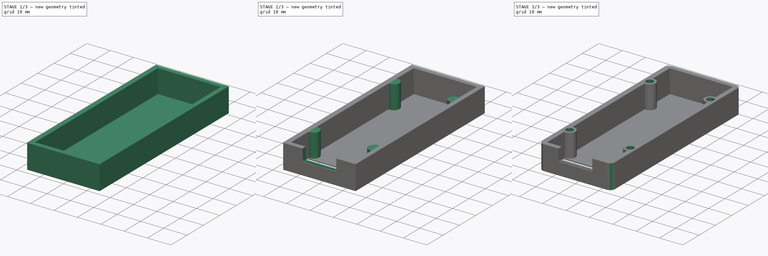
[diagram: build sequence overview — one tinted view per stage of 3, left to right]
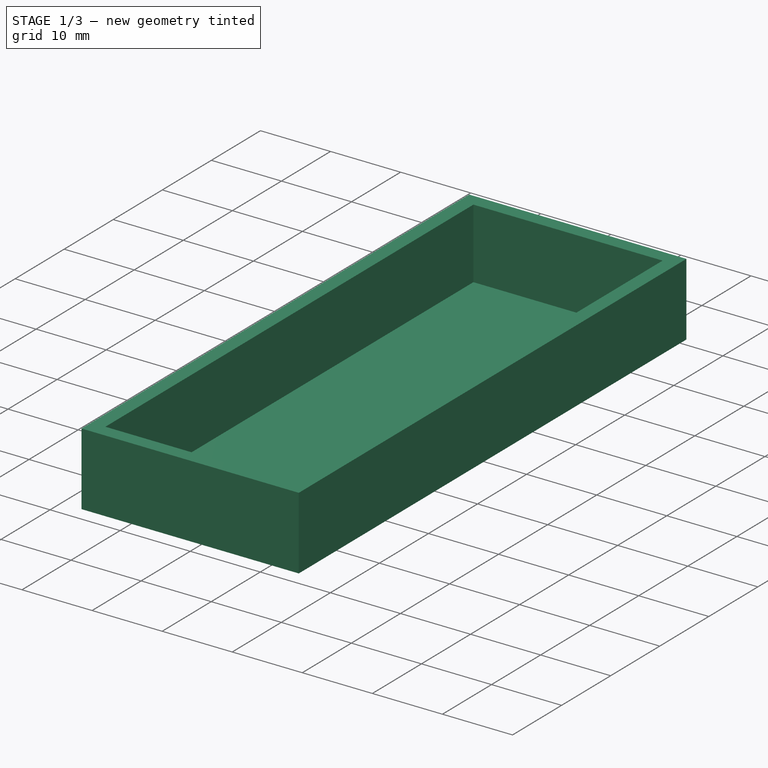
[diagram: stage 1 of 3 — iso view after this stage's code; geometry added in this stage tinted green]
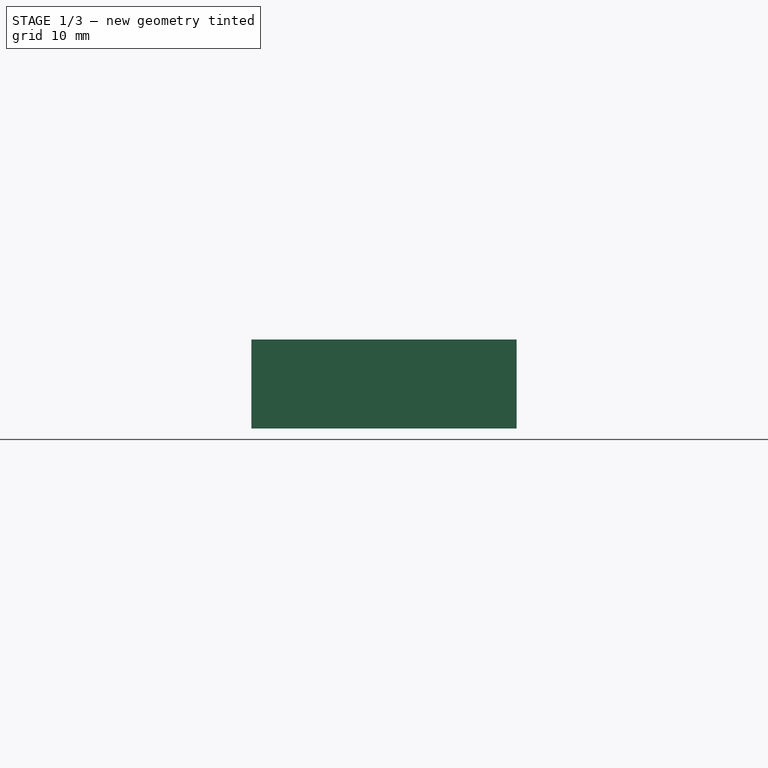
[diagram: stage 1 of 3 — front view after this stage's code; geometry added in this stage tinted green]
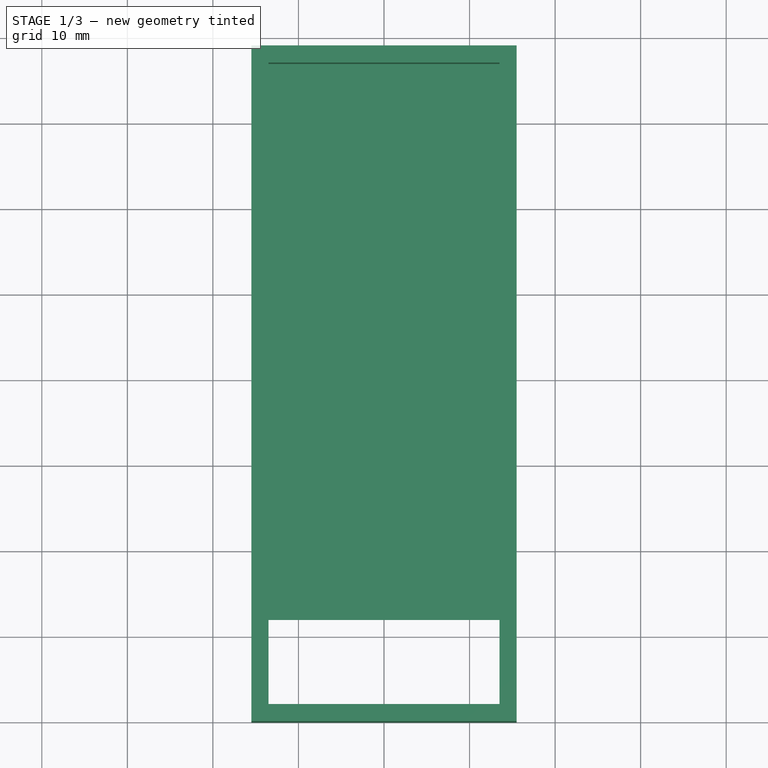
[diagram: stage 1 of 3 — top view after this stage's code; geometry added in this stage tinted green]
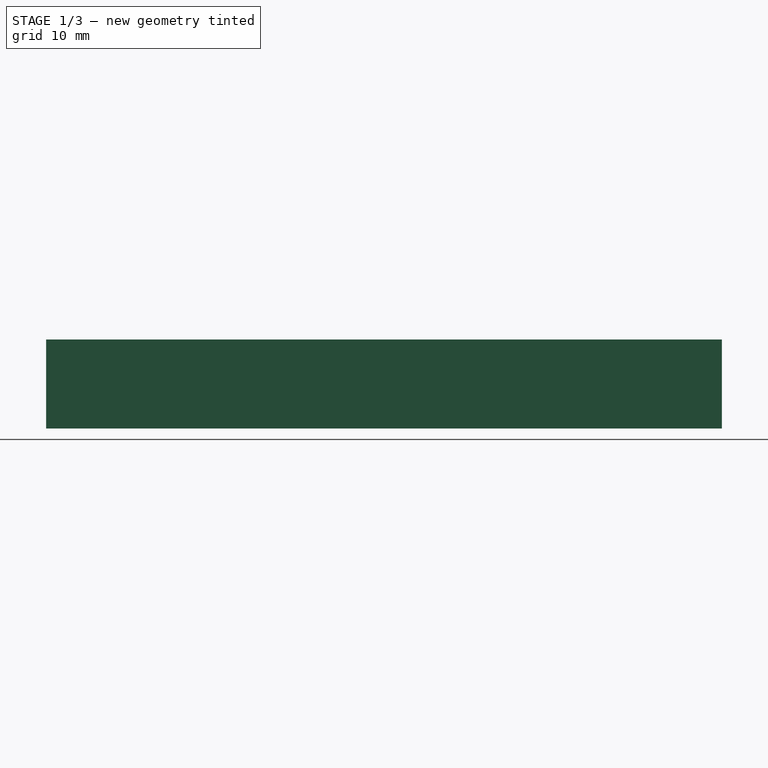
[diagram: stage 1 of 3 — right view after this stage's code; geometry added in this stage tinted green]
FCSTD DOCUMENT  (FreeCAD 0.18R13661 (Git))
Label: Middle_IskraMini
License: All rights reserved
LicenseURL: http://en.wikipedia.org/wiki/All_rights_reserved
objects: Sketcher::SketchObject×6, PartDesign::Pad×4, PartDesign::Plane×3, PartDesign::Pocket×2, PartDesign::Fillet×1, PartDesign::Body×1
note: 23 computed .brp shape members not serialized (recipe doc carries the construction recipe); baked Part::Feature solids carry a one-line shape summary decoded from their .brp

FEATURE [Sketcher::SketchObject] Sketch  label="BaseSketch"
  MapMode = 5
  Support = -> [XY_Plane]
  sketch-geometry (14):
    g0: LineSegment StartX=0 StartY=0 StartZ=0 EndX=15.5 EndY=0 EndZ=0
    g1: LineSegment StartX=0 StartY=0 StartZ=0 EndX=-15.5 EndY=0 EndZ=0
    g2: LineSegment StartX=-15.5 StartY=0 StartZ=0 EndX=-15.5 EndY=39.5 EndZ=0
    g3: LineSegment StartX=-15.5 StartY=39.5 StartZ=0 EndX=-15.5 EndY=79 EndZ=0
    g4: LineSegment StartX=-15.5 StartY=79 StartZ=0 EndX=0 EndY=79 EndZ=0
    g5: LineSegment StartX=0 StartY=79 StartZ=0 EndX=15.5 EndY=79 EndZ=0
    g6: LineSegment StartX=15.5 StartY=79 StartZ=0 EndX=15.5 EndY=39.5 EndZ=0
    g7: LineSegment StartX=15.5 StartY=39.5 StartZ=0 EndX=15.5 EndY=0 EndZ=0
    g8: LineSegment StartX=-13.5 StartY=77 StartZ=0 EndX=13.5 EndY=77 EndZ=0
    g9: LineSegment StartX=13.5 StartY=77 StartZ=0 EndX=13.5 EndY=2 EndZ=0
    g10: LineSegment StartX=13.5 StartY=2 StartZ=0 EndX=-13.5 EndY=2 EndZ=0
    g11: LineSegment StartX=-13.5 StartY=2 StartZ=0 EndX=-13.5 EndY=77 EndZ=0
    g12: LineSegment [constr] StartX=-13.5 StartY=77 StartZ=0 EndX=-15.5 EndY=77 EndZ=0
    g13: LineSegment [constr] StartX=13.5 StartY=77 StartZ=0 EndX=15.5 EndY=77 EndZ=0
  constraints (41):
    c: Coincident(g0,g-1)
    c: Coincident(g1,g-1)
    c: Equal(g1,g0)
    c: Parallel(g0,g1)
    c: Horizontal(g0)
    c: Coincident(g2,g1)
    c: Perpendicular(g1,g2)
    c: Coincident(g3,g2)
    c: Equal(g3,g2)
    c: Parallel(g3,g2)
    c: Coincident(g4,g3)
    c: Coincident(g5,g4)
    c: Coincident(g6,g5)
    c: Coincident(g7,g6)
    c: Coincident(g7,g0)
    c: Equal(g4,g5)
    c: Equal(g7,g6)
    c: Parallel(g4,g5)
    c: Perpendicular(g3,g4)
    c: Parallel(g6,g7)
    c: Perpendicular(g6,g5)
    c: Coincident(g8,g9)
    c: Coincident(g9,g10)
    c: Coincident(g10,g11)
    c: Coincident(g11,g8)
    c: Parallel(g11,g3)
    c: Parallel(g8,g4)
    c: Parallel(g9,g6)
    c: Parallel(g1,g10)
    c: Coincident(g12,g8)
    c: PointOnObject(g12,g3)
    c: Coincident(g13,g8)
    c: PointOnObject(g13,g6)
    c: Distance(g12) = 2
    c: Distance(g3,g12) = 2
    c: Parallel(g12,g8)
    c: Equal(g12,g13)
    c: Parallel(g12,g13)
    c: Distance(g10) = 27
    c: Distance(g11) = 75
    c: Distance(g10,g1) = 2
FEATURE [PartDesign::Pad] Pad  label="BasePad"
  Length = 10
  Length2 = 100
  Profile = -> Sketch
  Type = 0
FEATURE [Sketcher::SketchObject] Sketch001  label="BottomSketch"
  ExternalGeometry = -> [Pad]
  MapMode = 5
  Support = -> [XY_Plane]
  sketch-geometry (12):
    g0: LineSegment StartX=-15.5 StartY=79 StartZ=0 EndX=-15.5 EndY=39.5 EndZ=0
    g1: LineSegment StartX=-15.5 StartY=39.5 StartZ=0 EndX=-15.5 EndY=0 EndZ=0
    g2: LineSegment StartX=-15.5 StartY=0 StartZ=0 EndX=0 EndY=0 EndZ=0
    g3: LineSegment StartX=0 StartY=0 StartZ=0 EndX=15.5 EndY=0 EndZ=0
    g4: LineSegment StartX=15.5 StartY=0 StartZ=0 EndX=15.5 EndY=39.5 EndZ=0
    g5: LineSegment StartX=15.5 StartY=39.5 StartZ=0 EndX=15.5 EndY=79 EndZ=0
    g6: LineSegment StartX=15.5 StartY=79 StartZ=0 EndX=0 EndY=79 EndZ=0
    g7: LineSegment StartX=0 StartY=79 StartZ=0 EndX=-15.5 EndY=79 EndZ=0
    g8: LineSegment StartX=13.5 StartY=2 StartZ=0 EndX=-13.5 EndY=2 EndZ=0
    g9: LineSegment StartX=-13.5 StartY=2 StartZ=0 EndX=-13.5 EndY=12 EndZ=0
    g10: LineSegment StartX=13.5 StartY=2 StartZ=0 EndX=13.5 EndY=12 EndZ=0
    g11: LineSegment StartX=-13.5 StartY=12 StartZ=0 EndX=13.5 EndY=12 EndZ=0
  constraints (26):
    c: Coincident(g0,g-10)
    c: Coincident(g0,g-4)
    c: Coincident(g1,g0)
    c: Coincident(g1,g-5)
    c: Coincident(g2,g1)
    c: Coincident(g2,g-1)
    c: Coincident(g3,g-1)
    c: Coincident(g3,g-7)
    c: Coincident(g4,g3)
    c: Coincident(g4,g-8)
    c: Coincident(g5,g4)
    c: Coincident(g5,g-9)
    c: Coincident(g6,g5)
    c: Coincident(g6,g-10)
    c: Coincident(g7,g6)
    c: Coincident(g7,g0)
    c: Coincident(g8,g-11)
    c: Coincident(g8,g-11)
    c: Coincident(g9,g8)
    c: Coincident(g10,g8)
    c: Coincident(g11,g9)
    c: Coincident(g11,g10)
    c: Perpendicular(g9,g8)
    c: Perpendicular(g9,g11)
    c: Perpendicular(g8,g10)
    c: Distance(g9) = 10
FEATURE [PartDesign::Pad] Pad001  label="BottomPad"
  BaseFeature = -> Pad
  Length = 0.4
  Length2 = 100
  Profile = -> Sketch001
  Reversed = true
  Type = 0
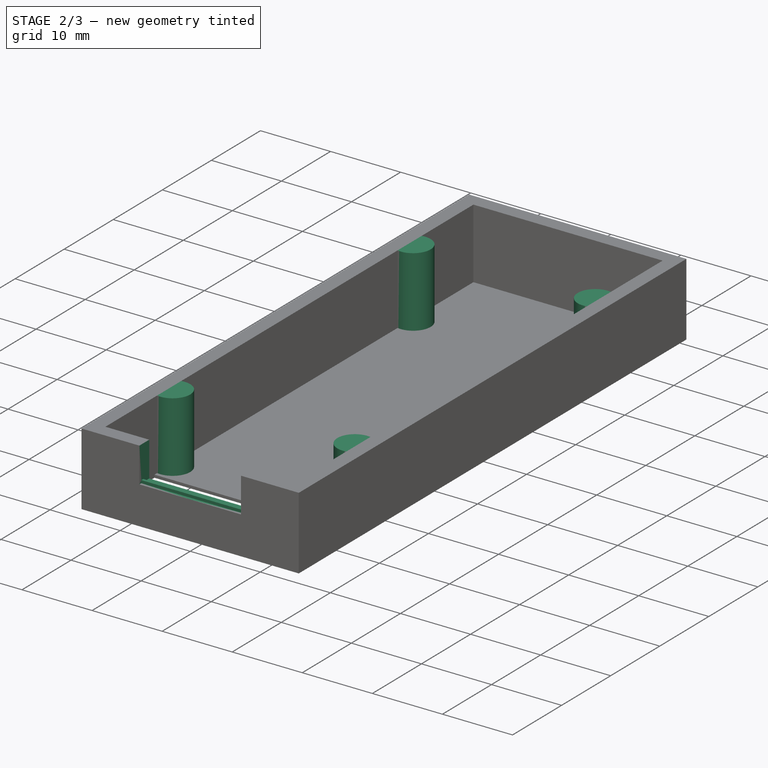
[diagram: stage 2 of 3 — iso view after this stage's code; geometry added in this stage tinted green]
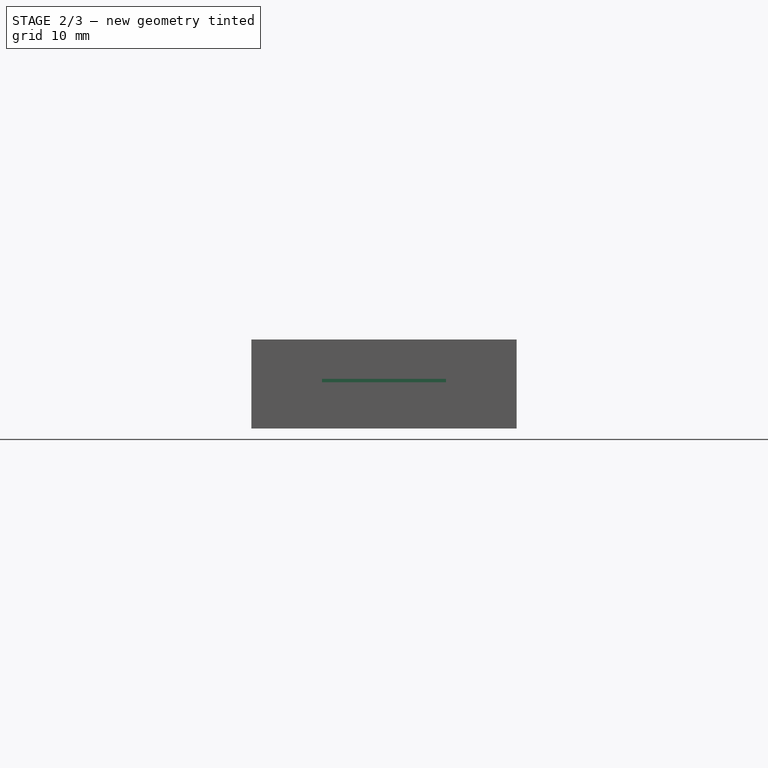
[diagram: stage 2 of 3 — front view after this stage's code; geometry added in this stage tinted green]
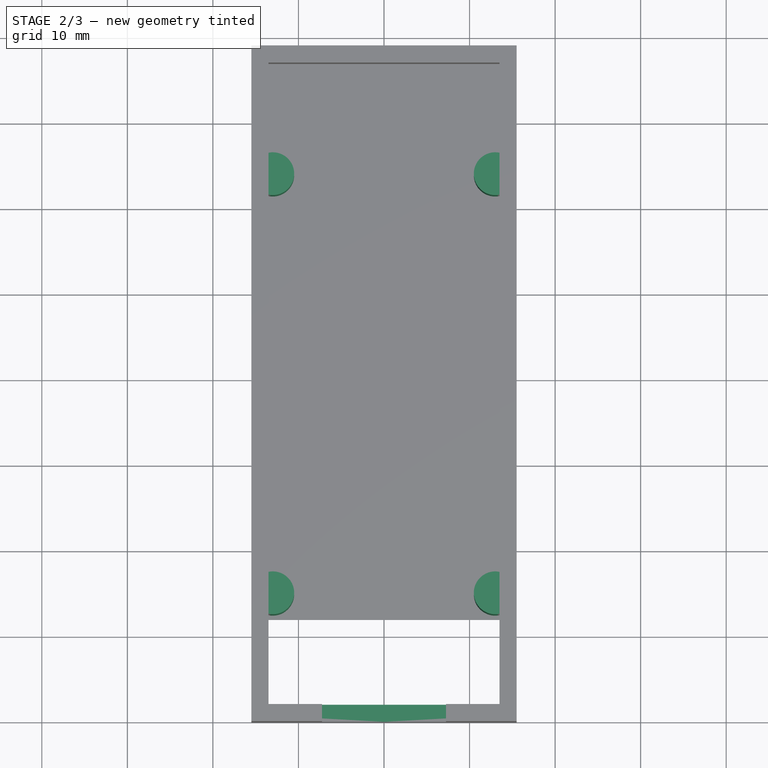
[diagram: stage 2 of 3 — top view after this stage's code; geometry added in this stage tinted green]
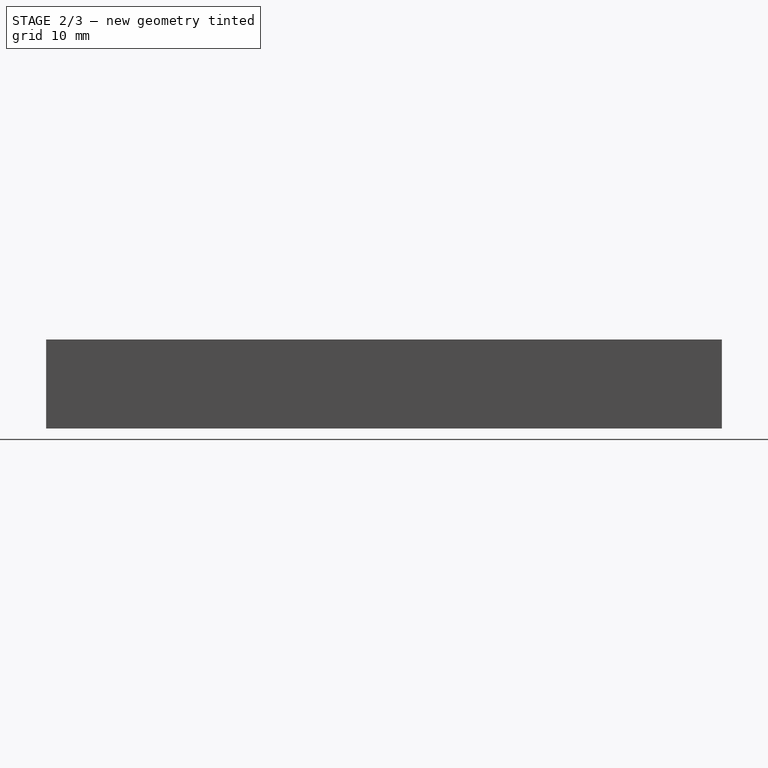
[diagram: stage 2 of 3 — right view after this stage's code; geometry added in this stage tinted green]
FEATURE [PartDesign::Plane] DatumPlane003  label="CaseScrewsHubPlane"
  MapMode = 6
  Placement = pos=(-15.5,39.5,10) rot=(0,0,1;3.14159rad)
  Support = -> [Pad001]
FEATURE [PartDesign::Plane] DatumPlane  label="DS1066-06M_ConnectorPlane"
  MapMode = 6
  Placement = pos=(0,0,10) rot=(0,0,1;3.14159rad)
  Support = -> [Pad001]
FEATURE [Sketcher::SketchObject] Sketch010  label="DS1066-06M_ConnectorSketch"
  ExternalGeometry = -> [Pad001]
  MapMode = 5
  Placement = pos=(0,0,10) rot=(0,0,1;3.14159rad)
  Support = -> [DatumPlane]
  sketch-geometry (5):
    g0: LineSegment StartX=0 StartY=0 StartZ=0 EndX=7.25 EndY=0 EndZ=0
    g1: LineSegment StartX=7.25 StartY=0 StartZ=0 EndX=7.25 EndY=-2 EndZ=0
    g2: LineSegment StartX=7.25 StartY=-2 StartZ=0 EndX=-7.25 EndY=-2 EndZ=0
    g3: LineSegment StartX=-7.25 StartY=-2 StartZ=0 EndX=-7.25 EndY=0 EndZ=0
    g4: LineSegment StartX=-7.25 StartY=0 StartZ=0 EndX=0 EndY=0 EndZ=0
  constraints (14):
    c: Distance(g2) = 14.5
    c: Coincident(g3,g4)
    c: Coincident(g0,g4)
    c: Coincident(g0,g1)
    c: Coincident(g0,g-1)
    c: PointOnObject(g0,g-4)
    c: PointOnObject(g3,g-3)
    c: Equal(g4,g0)
    c: Coincident(g2,g3)
    c: Coincident(g2,g1)
    c: Parallel(g3,g1)
    c: Perpendicular(g4,g3)
    c: PointOnObject(g2,g-5)
    c: PointOnObject(g1,g-5)
FEATURE [PartDesign::Pocket] Pocket  label="DS1066-06M_ConnectorPocket"
  BaseFeature = -> Pad001
  Length = 5
  Length2 = 100
  Profile = -> Sketch010
  Type = 0
FEATURE [PartDesign::Plane] DatumPlane004  label="ConnectorNotchPlane"
  MapMode = 6
  Placement = pos=(0,0,5) rot=(0,0,1;3.14159rad)
  Support = -> [Pocket]
FEATURE [Sketcher::SketchObject] Sketch011  label="ConnectorNotchSketch"
  ExternalGeometry = -> [Pocket]
  MapMode = 5
  Placement = pos=(0,0,5) rot=(0,0,1;3.14159rad)
  Support = -> [DatumPlane004]
  sketch-geometry (4):
    g0: LineSegment StartX=-7.25 StartY=-0.4 StartZ=0 EndX=7.25 EndY=-0.4 EndZ=0
    g1: LineSegment StartX=7.25 StartY=-0.8 StartZ=0 EndX=-7.25 EndY=-0.8 EndZ=0
    g2: LineSegment StartX=-7.25 StartY=-0.4 StartZ=0 EndX=-7.25 EndY=-0.8 EndZ=0
    g3: LineSegment StartX=7.25 StartY=-0.4 StartZ=0 EndX=7.25 EndY=-0.8 EndZ=0
  constraints (12):
    c: PointOnObject(g0,g-3)
    c: PointOnObject(g0,g-4)
    c: PointOnObject(g1,g-4)
    c: PointOnObject(g1,g-3)
    c: Parallel(g0,g1)
    c: Perpendicular(g-3,g0)
    c: Distance(g0,g-3) = 0.4
    c: Distance(g1,g0) = 0.4
    c: Coincident(g2,g0)
    c: Coincident(g2,g1)
    c: Coincident(g3,g0)
    c: Coincident(g3,g1)
FEATURE [PartDesign::Pad] Pad004  label="ConnectorNotchPad"
  BaseFeature = -> Pocket
  Length = 0.4
  Length2 = 100
  Profile = -> Sketch011
  Type = 0
FEATURE [Sketcher::SketchObject] Sketch012  label="CaseScrewsHubSketch"
  ExternalGeometry = -> [Pad001]
  MapMode = 5
  Placement = pos=(-15.5,39.5,10) rot=(0,0,1;3.14159rad)
  Support = -> [DatumPlane003]
  sketch-geometry (8):
    g0: LineSegment [constr] StartX=0 StartY=24.5 StartZ=0 EndX=-2.5 EndY=24.5 EndZ=0
    g1: LineSegment [constr] StartX=-31 StartY=24.5 StartZ=0 EndX=-28.5 EndY=24.5 EndZ=0
    g2: Circle CenterX=-2.5 CenterY=24.5 CenterZ=0 NormalX=0 NormalY=0 NormalZ=1 AngleXU=0 Radius=2.5
    g3: Circle CenterX=-28.5 CenterY=24.5 CenterZ=0 NormalX=0 NormalY=0 NormalZ=1 AngleXU=0 Radius=2.5
    g4: LineSegment [constr] StartX=-31 StartY=-24.5 StartZ=0 EndX=-28.5 EndY=-24.5 EndZ=0
    g5: LineSegment [constr] StartX=0 StartY=-24.5 StartZ=0 EndX=-2.5 EndY=-24.5 EndZ=0
    g6: Circle CenterX=-28.5 CenterY=-24.5 CenterZ=0 NormalX=0 NormalY=0 NormalZ=1 AngleXU=0 Radius=2.5
    g7: Circle CenterX=-2.5 CenterY=-24.5 CenterZ=0 NormalX=0 NormalY=0 NormalZ=1 AngleXU=0 Radius=2.5
  constraints (24):
    c: Equal(g0,g1)
    c: Parallel(g0,g1)
    c: Perpendicular(g-3,g0)
    c: Distance(g0) = 2.5
    c: Coincident(g2,g0)
    c: Coincident(g3,g1)
    c: Equal(g2,g3)
    c: Radius(g2) = 2.5
    c: Distance(g1,g-5) = 15
    c: PointOnObject(g1,g-5)
    c: PointOnObject(g0,g-3)
    c: Distance(g0,g-3) = 15
    c: PointOnObject(g4,g-6)
    c: PointOnObject(g5,g-4)
    c: Parallel(g5,g4)
    c: Equal(g4,g5)
    c: Perpendicular(g-6,g4)
    c: Distance(g4,g-6) = 15
    c: Distance(g5,g-4) = 15
    c: Distance(g4) = 2.5
    c: Coincident(g6,g4)
    c: Coincident(g7,g5)
    c: Equal(g6,g7)
    c: Radius(g6) = 2.5
FEATURE [Sketcher::SketchObject] Sketch009  label="CaseScrewsHoleSketch"
  ExternalGeometry = -> [Sketch012]
  MapMode = 5
  Placement = pos=(-15.5,39.5,10) rot=(0,0,1;3.14159rad)
  Support = -> [DatumPlane003]
  sketch-geometry (4):
    g0: Circle CenterX=-28.5 CenterY=24.5 CenterZ=0 NormalX=0 NormalY=0 NormalZ=1 AngleXU=0 Radius=1.5
    g1: Circle CenterX=-2.5 CenterY=24.5 CenterZ=0 NormalX=0 NormalY=0 NormalZ=1 AngleXU=0 Radius=1.5
    g2: Circle CenterX=-28.5 CenterY=-24.5 CenterZ=0 NormalX=0 NormalY=0 NormalZ=1 AngleXU=0 Radius=1.5
    g3: Circle CenterX=-2.5 CenterY=-24.5 CenterZ=0 NormalX=0 NormalY=0 NormalZ=1 AngleXU=0 Radius=1.5
  constraints (8):
    c: Radius(g0) = 1.5
    c: Coincident(g0,g-3)
    c: Coincident(g1,g-4)
    c: Coincident(g2,g-5)
    c: Equal(g0,g1)
    c: Equal(g1,g2)
    c: Equal(g2,g3)
    c: Coincident(g3,g-6)
FEATURE [PartDesign::Pad] Pad005  label="CaseScrewsHubPad"
  BaseFeature = -> Pad004
  Length = 10
  Length2 = 100
  Profile = -> Sketch012
  Reversed = true
  Type = 1
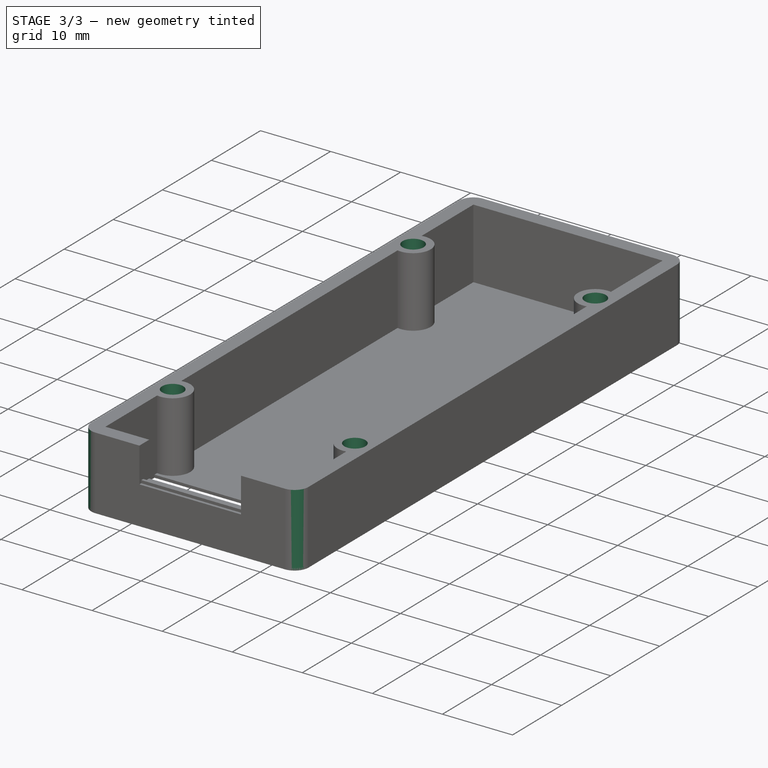
[diagram: stage 3 of 3 — iso view after this stage's code; geometry added in this stage tinted green]
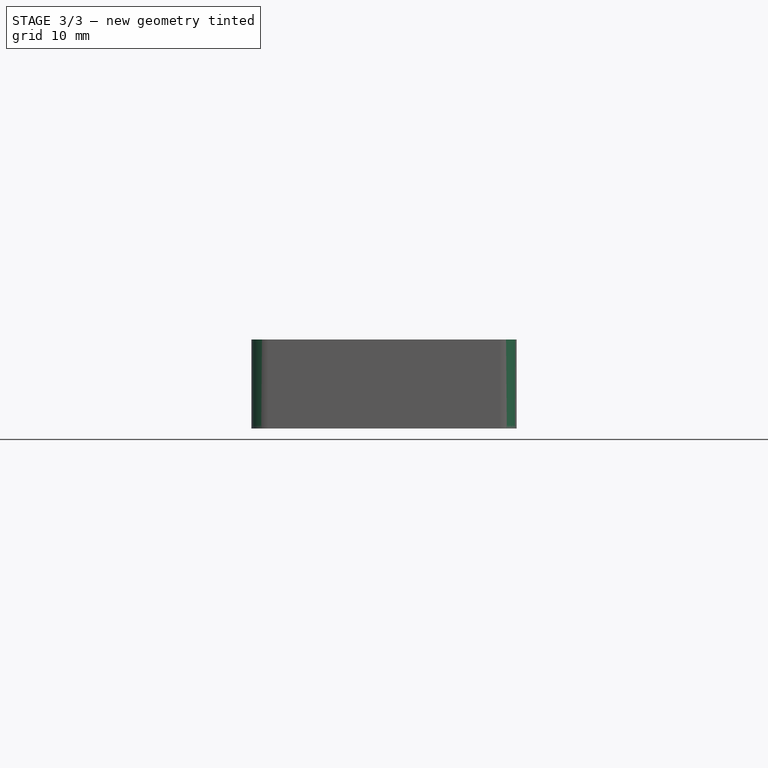
[diagram: stage 3 of 3 — front view after this stage's code; geometry added in this stage tinted green]
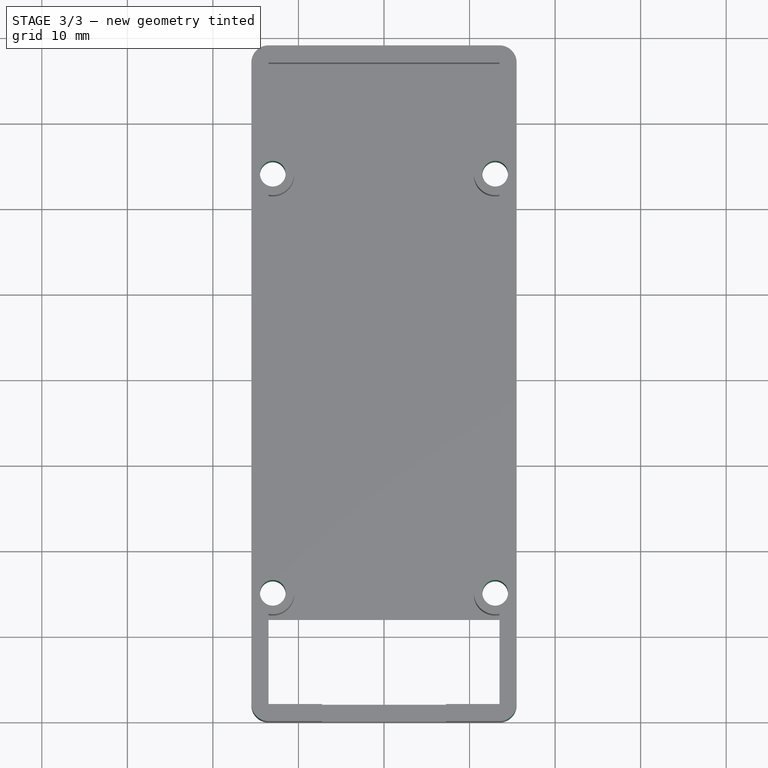
[diagram: stage 3 of 3 — top view after this stage's code; geometry added in this stage tinted green]
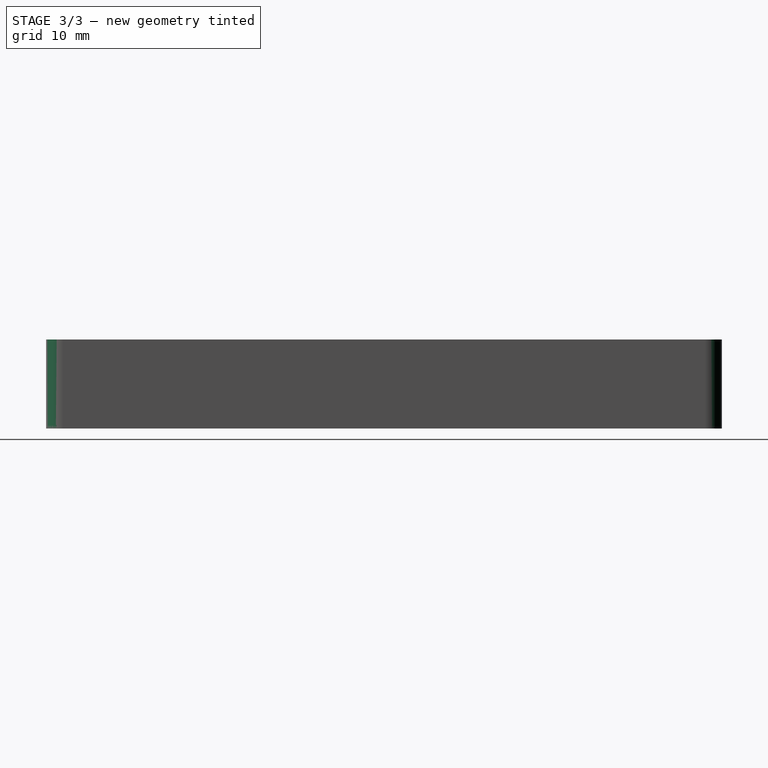
[diagram: stage 3 of 3 — right view after this stage's code; geometry added in this stage tinted green]
FEATURE [PartDesign::Pocket] Pocket001  label="CaseScrewsHolePocket"
  BaseFeature = -> Pad005
  Length = 5
  Length2 = 100
  Profile = -> Sketch009
  Type = 1
FEATURE [PartDesign::Fillet] Fillet
  Base = -> Pocket001 [Edge101,Edge42,Edge109,Edge105]
  BaseFeature = -> Pocket001
  Radius = 2
FEATURE [PartDesign::Body] Body  label="CaseBody"
  Group = -> [Sketch,Pad,Sketch001,Pad001,DatumPlane003,Sketch009,DatumPlane,Sketch010,Pocket,DatumPlane004,Sketch011,Pad004,Sketch012,Pad005,Pocket001,Fillet]
  Origin = -> Origin
  Tip = -> Fillet
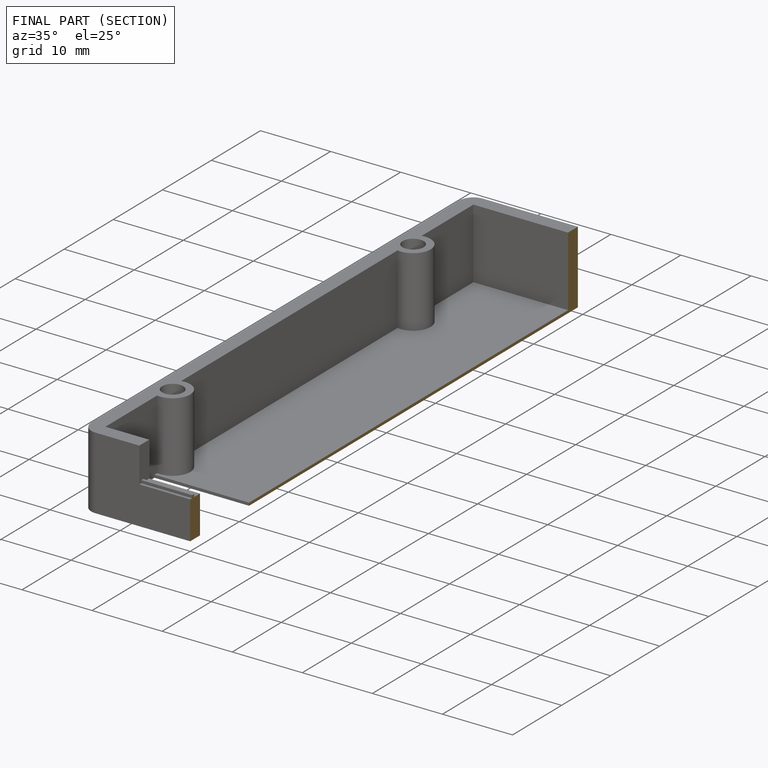
[diagram: finished part — half-section view (interior)]
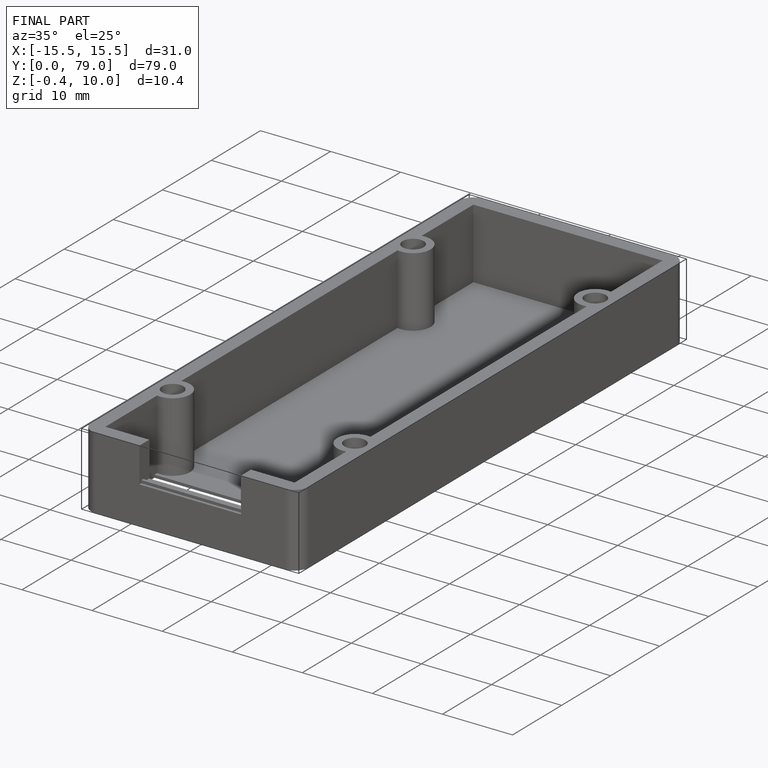
[diagram: finished part — iso view with bounding-box wireframe]
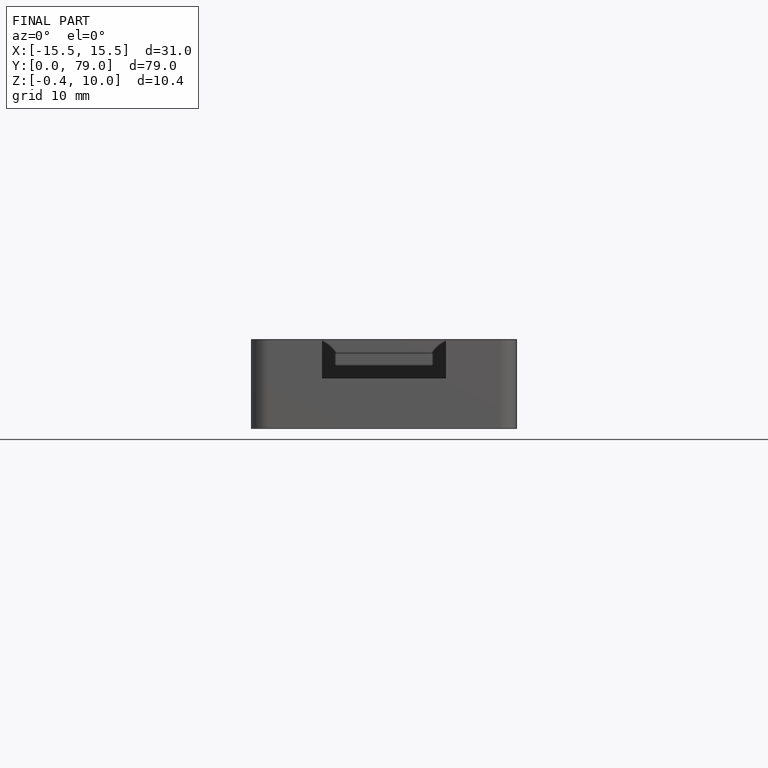
[diagram: finished part — front view with bounding-box wireframe]
